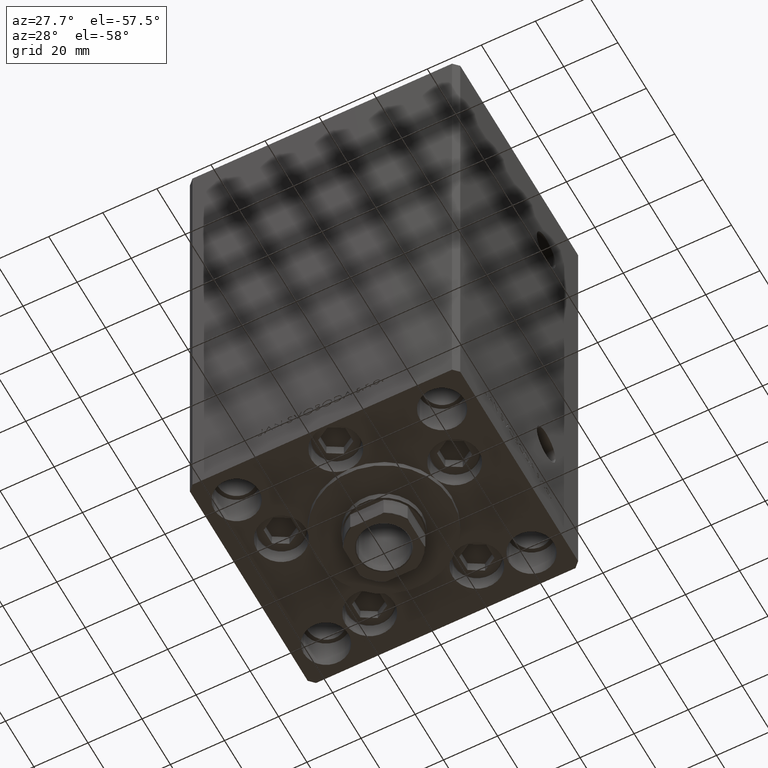
[diagram: clean part render]
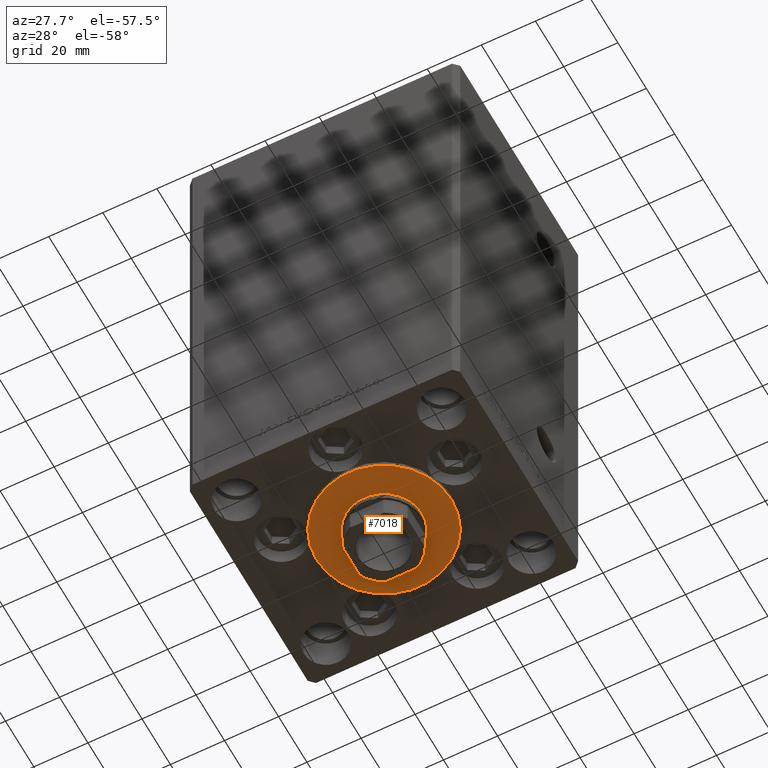
[diagram: same view with one face highlighted and labeled with its STEP entity id]
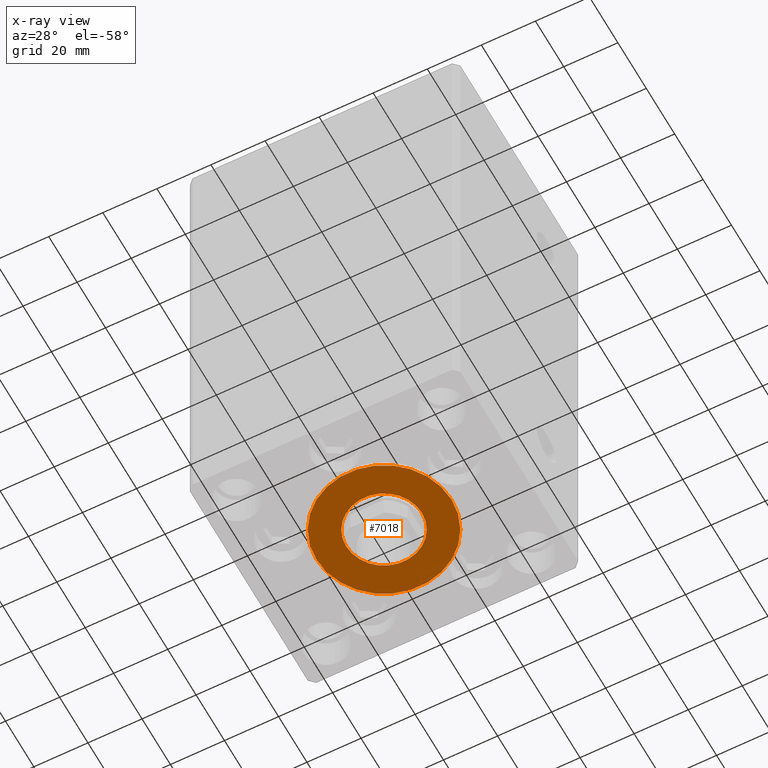
[diagram: x-ray of the same camera — body ghosted, the highlighted face saturated]
A machine part, auxiliary view. The second image highlights one B-rep face of the part: STEP entity #7018.
The next image is the same camera in x-ray: the body ghosted, the highlighted face saturated — about 0% of this face is hidden behind the body in this view.
In plain terms, the highlighted planar face has unit normal (0, 0, -1).
Its self-contained STEP definition (entity closure, byte-faithful):
#6457 = DIRECTION ( 'NONE',  ( 1.000000000000000000, 0.000000000000000000, 0.000000000000000000 ) ) ;
#6930 = CIRCLE ( 'NONE', #16531, 25.00000000000000000 ) ;
#7018 = ADVANCED_FACE ( 'NONE', ( #14756, #33570 ), #49600, .T. ) ;
#7405 = CIRCLE ( 'NONE', #29085, 14.00000000000000000 ) ;
#8687 = EDGE_CURVE ( 'NONE', #37054, #16539, #6930, .T. ) ;
#8885 = ORIENTED_EDGE ( 'NONE', *, *, #35323, .F. ) ;
#9715 = CARTESIAN_POINT ( 'NONE',  ( 0.000000000000000000, -6.938893903907228378E-15, 2.000000000000000000 ) ) ;
#10444 = DIRECTION ( 'NONE',  ( 1.000000000000000000, 0.000000000000000000, 0.000000000000000000 ) ) ;
#12358 = AXIS2_PLACEMENT_3D ( 'NONE', #9715, #44601, #44847 ) ;
#14756 = FACE_BOUND ( 'NONE', #21019, .T. ) ;
#15172 = EDGE_LOOP ( 'NONE', ( #34423, #19248 ) ) ;
#16531 = AXIS2_PLACEMENT_3D ( 'NONE', #33775, #33289, #10444 ) ;
#16539 = VERTEX_POINT ( 'NONE', #24349 ) ;
#16707 = VERTEX_POINT ( 'NONE', #38327 ) ;
#17270 = DIRECTION ( 'NONE',  ( 0.000000000000000000, 0.000000000000000000, 1.000000000000000000 ) ) ;
#19248 = ORIENTED_EDGE ( 'NONE', *, *, #8687, .T. ) ;
#19249 = DIRECTION ( 'NONE',  ( 0.000000000000000000, 0.000000000000000000, 1.000000000000000000 ) ) ;
#20158 = DIRECTION ( 'NONE',  ( 1.000000000000000000, 0.000000000000000000, 0.000000000000000000 ) ) ;
#21019 = EDGE_LOOP ( 'NONE', ( #41424, #8885 ) ) ;
#22174 = VERTEX_POINT ( 'NONE', #35164 ) ;
#23424 = DIRECTION ( 'NONE',  ( 0.000000000000000000, 0.000000000000000000, 1.000000000000000000 ) ) ;
#24349 = CARTESIAN_POINT ( 'NONE',  ( -25.00000000000000000, -6.938893903907228378E-15, 2.000000000000000000 ) ) ;
#25343 = AXIS2_PLACEMENT_3D ( 'NONE', #26778, #19249, #34542 ) ;
#26778 = CARTESIAN_POINT ( 'NONE',  ( 0.000000000000000000, -6.938893903907228378E-15, 2.000000000000000000 ) ) ;
#27591 = AXIS2_PLACEMENT_3D ( 'NONE', #31934, #23424, #20158 ) ;
#29085 = AXIS2_PLACEMENT_3D ( 'NONE', #32568, #17270, #6457 ) ;
#30890 = EDGE_CURVE ( 'NONE', #22174, #16707, #7405, .T. ) ;
#31934 = CARTESIAN_POINT ( 'NONE',  ( 0.000000000000000000, -6.938893903907228378E-15, 2.000000000000000000 ) ) ;
#32568 = CARTESIAN_POINT ( 'NONE',  ( 0.000000000000000000, -6.938893903907228378E-15, 2.000000000000000000 ) ) ;
#33289 = DIRECTION ( 'NONE',  ( 0.000000000000000000, 0.000000000000000000, 1.000000000000000000 ) ) ;
#33570 = FACE_OUTER_BOUND ( 'NONE', #15172, .T. ) ;
#33775 = CARTESIAN_POINT ( 'NONE',  ( 0.000000000000000000, -6.938893903907228378E-15, 2.000000000000000000 ) ) ;
#34423 = ORIENTED_EDGE ( 'NONE', *, *, #35768, .T. ) ;
#34542 = DIRECTION ( 'NONE',  ( 1.000000000000000000, 0.000000000000000000, -0.000000000000000000 ) ) ;
#35164 = CARTESIAN_POINT ( 'NONE',  ( 14.00000000000000000, -6.938893903907228378E-15, 2.000000000000000000 ) ) ;
#35323 = EDGE_CURVE ( 'NONE', #16707, #22174, #39626, .T. ) ;
#35768 = EDGE_CURVE ( 'NONE', #16539, #37054, #42808, .T. ) ;
#37054 = VERTEX_POINT ( 'NONE', #41926 ) ;
#38327 = CARTESIAN_POINT ( 'NONE',  ( -14.00000000000000000, -5.224388385100933937E-15, 2.000000000000000000 ) ) ;
#39626 = CIRCLE ( 'NONE', #12358, 14.00000000000000000 ) ;
#41424 = ORIENTED_EDGE ( 'NONE', *, *, #30890, .F. ) ;
#41926 = CARTESIAN_POINT ( 'NONE',  ( 25.00000000000000000, -3.877276906038844941E-15, 2.000000000000000000 ) ) ;
#42808 = CIRCLE ( 'NONE', #27591, 25.00000000000000000 ) ;
#44601 = DIRECTION ( 'NONE',  ( 0.000000000000000000, 0.000000000000000000, 1.000000000000000000 ) ) ;
#44847 = DIRECTION ( 'NONE',  ( 1.000000000000000000, 0.000000000000000000, 0.000000000000000000 ) ) ;
#49600 = PLANE ( 'NONE',  #25343 ) ;